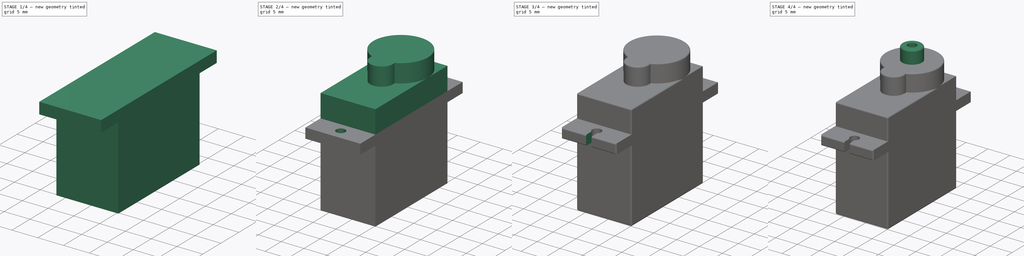
[diagram: build sequence overview — one tinted view per stage of 4, left to right]
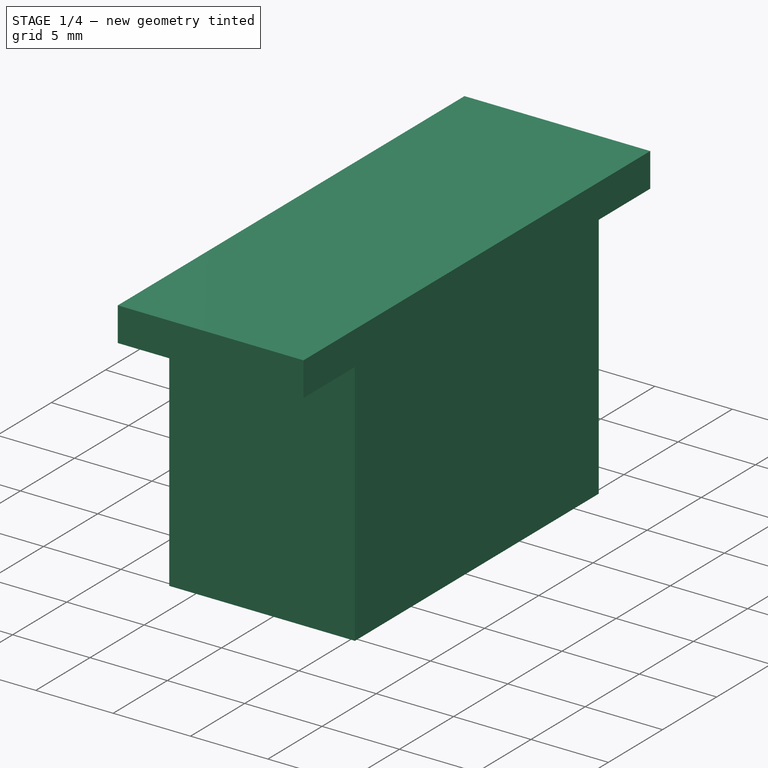
[diagram: stage 1 of 4 — iso view after this stage's code; geometry added in this stage tinted green]
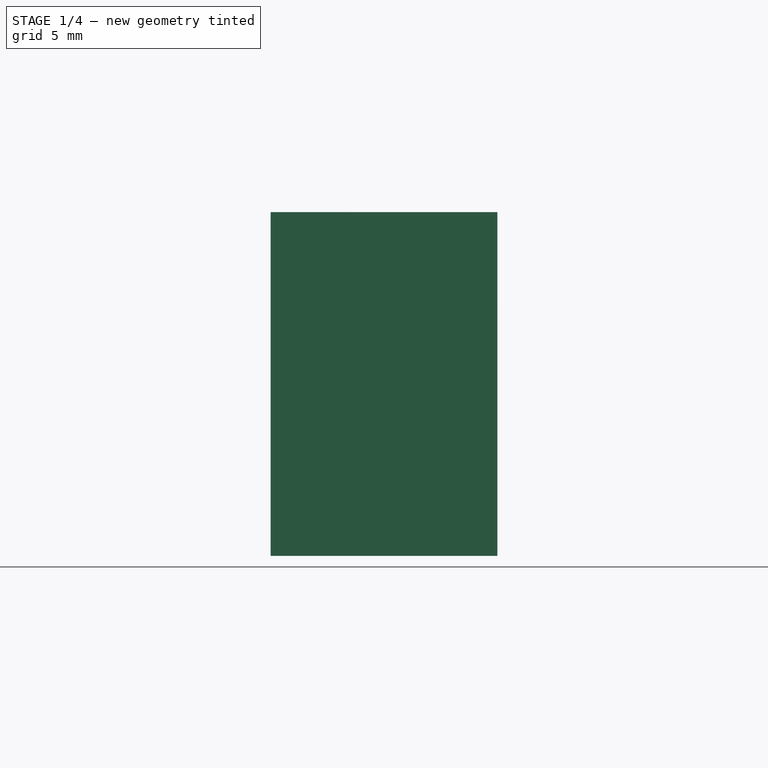
[diagram: stage 1 of 4 — front view after this stage's code; geometry added in this stage tinted green]
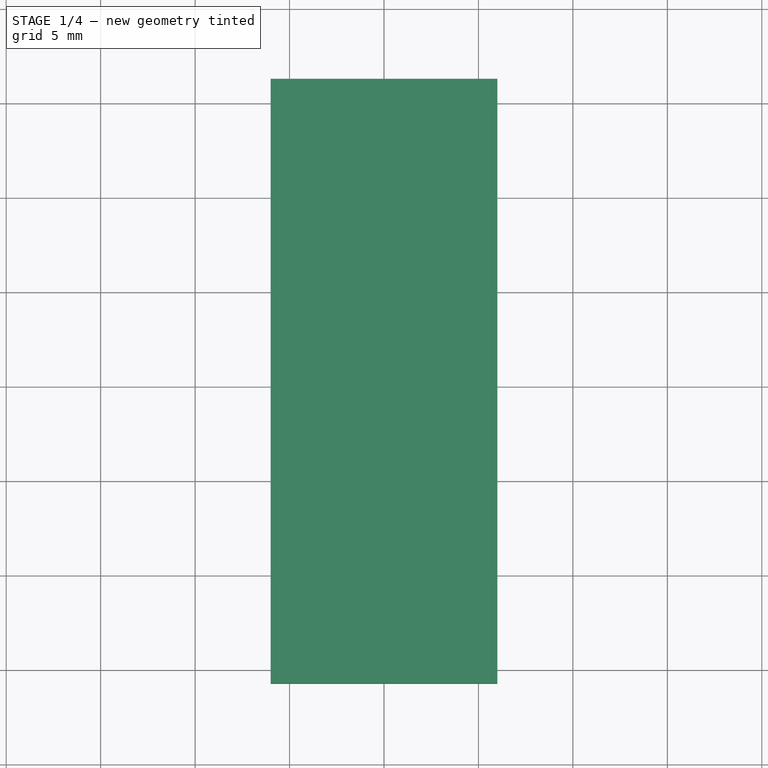
[diagram: stage 1 of 4 — top view after this stage's code; geometry added in this stage tinted green]
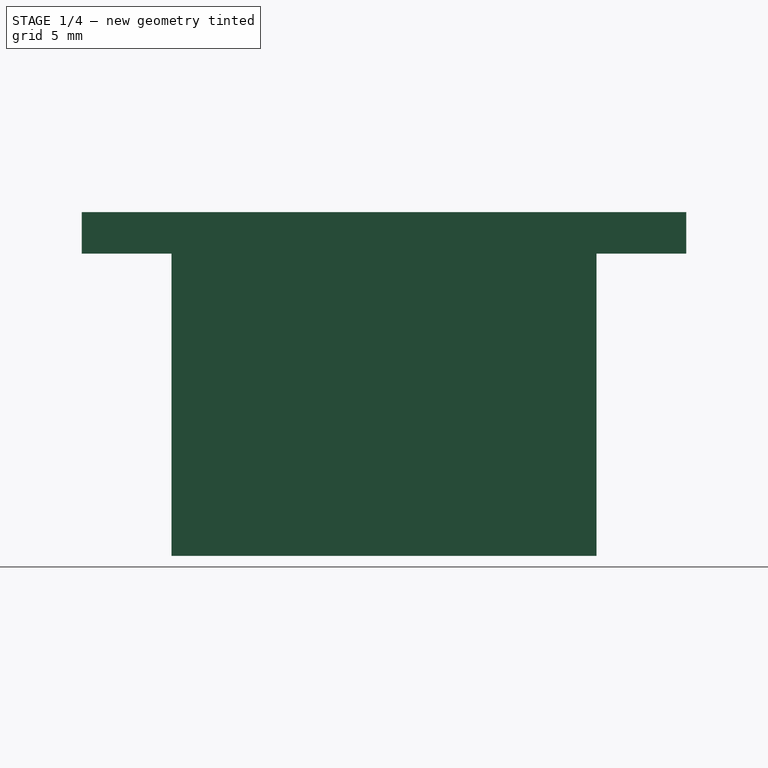
[diagram: stage 1 of 4 — right view after this stage's code; geometry added in this stage tinted green]
FCSTD DOCUMENT  (FreeCAD 1.0R39319 (Git))
Label: Servo-SG90
License: All rights reserved
LicenseURL: http://en.wikipedia.org/wiki/All_rights_reserved
objects: Sketcher::SketchObject×6, PartDesign::Pad×5, PartDesign::Fillet×2, PartDesign::Body×2, PartDesign::SubtractiveBox×2, PartDesign::Pocket×1, PartDesign::ShapeBinder×1
note: 45 computed .brp shape members not serialized (recipe doc carries the construction recipe); baked Part::Feature solids carry a one-line shape summary decoded from their .brp

FEATURE [Sketcher::SketchObject] Sketch
  ArcFitTolerance = 0
  AttachmentSupport = -> [XY_Plane]
  FullyConstrained = true
  MakeInternals = false
  MapMode = 5
  sketch-geometry (4):
    g0: LineSegment StartX=-6 StartY=11.25 StartZ=0 EndX=6 EndY=11.25 EndZ=0
    g1: LineSegment StartX=6 StartY=11.25 StartZ=0 EndX=6 EndY=-11.25 EndZ=0
    g2: LineSegment StartX=6 StartY=-11.25 StartZ=0 EndX=-6 EndY=-11.25 EndZ=0
    g3: LineSegment StartX=-6 StartY=-11.25 StartZ=0 EndX=-6 EndY=11.25 EndZ=0
  constraints (10):
    c: Coincident(g0,g1)
    c: Coincident(g1,g2)
    c: Coincident(g2,g3)
    c: Coincident(g3,g0)
    c: Horizontal(g2)
    c: Vertical(g1)
    c: Symmetric(g0,g0,g-2)
    c: Symmetric(g0,g2,g-1)
    c: DistanceX(g0,g0) = 12
    c: DistanceY(g1,g1) = 22.5
FEATURE [PartDesign::Pad] Pad
  AllowMultiFace = false
  Direction = (0,0,1)
  Length = 16
  Length2 = 100
  Profile = -> Sketch
  Reversed = true
  Suppressed = false
  Type = 0
FEATURE [Sketcher::SketchObject] Sketch001
  ArcFitTolerance = 0
  AttachmentSupport = -> [Pad]
  FullyConstrained = true
  MakeInternals = false
  MapMode = 5
  sketch-geometry (4):
    g0: LineSegment StartX=-6 StartY=16 StartZ=0 EndX=6 EndY=16 EndZ=0
    g1: LineSegment StartX=6 StartY=16 StartZ=0 EndX=6 EndY=-16 EndZ=0
    g2: LineSegment StartX=6 StartY=-16 StartZ=0 EndX=-6 EndY=-16 EndZ=0
    g3: LineSegment StartX=-6 StartY=-16 StartZ=0 EndX=-6 EndY=16 EndZ=0
  constraints (10):
    c: Coincident(g0,g1)
    c: Coincident(g1,g2)
    c: Coincident(g2,g3)
    c: Coincident(g3,g0)
    c: Horizontal(g2)
    c: Vertical(g1)
    c: Symmetric(g0,g0,g-2)
    c: Symmetric(g2,g0,g-1)
    c: DistanceX(g0,g0) = 12
    c: DistanceY(g1,g1) = 32
FEATURE [PartDesign::Pad] Pad001
  AllowMultiFace = false
  BaseFeature = -> Pad
  Direction = (0,0,1)
  Length = 2.2
  Length2 = 100
  Profile = -> Sketch001
  Suppressed = false
  Type = 0
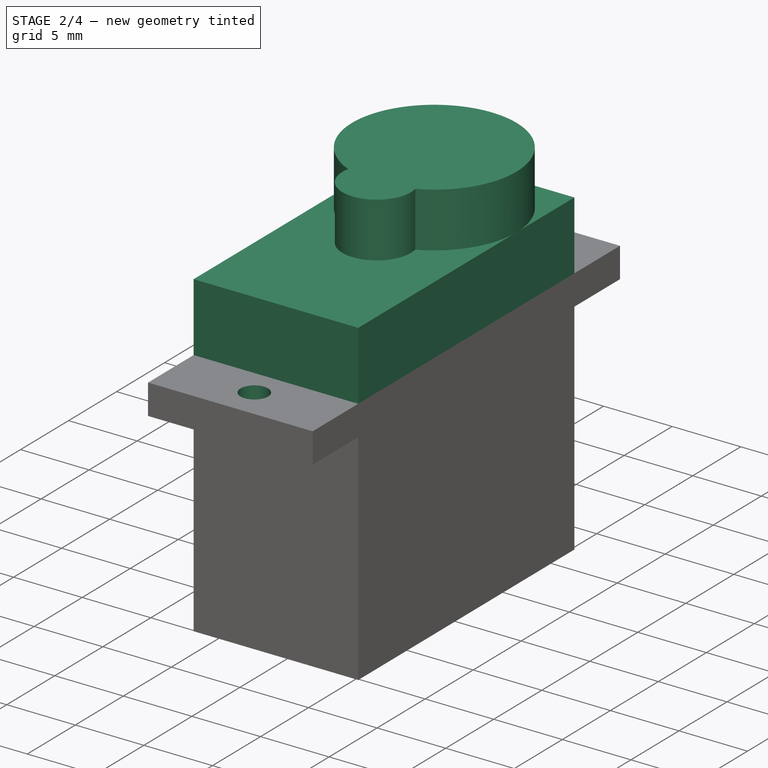
[diagram: stage 2 of 4 — iso view after this stage's code; geometry added in this stage tinted green]
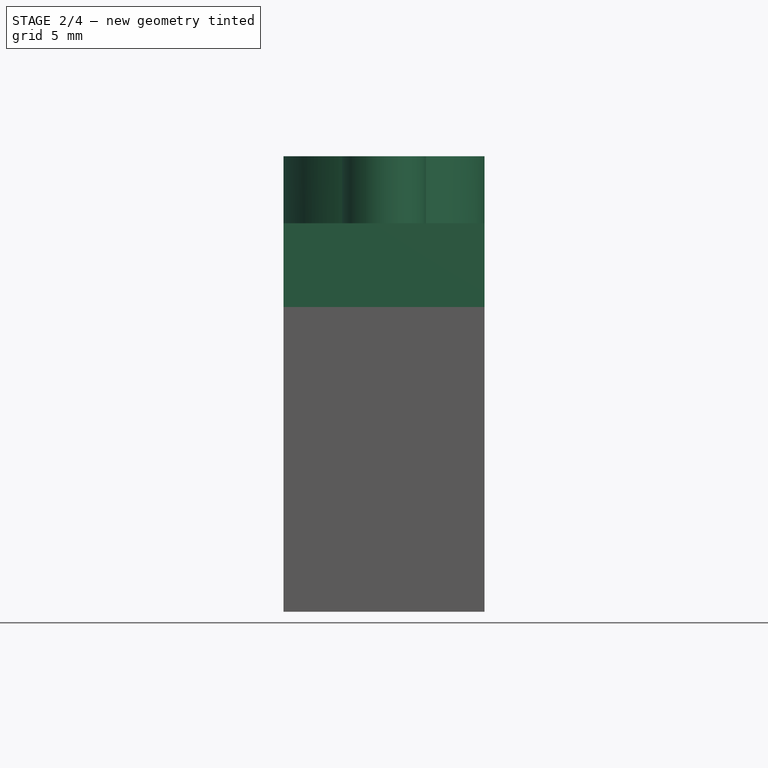
[diagram: stage 2 of 4 — front view after this stage's code; geometry added in this stage tinted green]
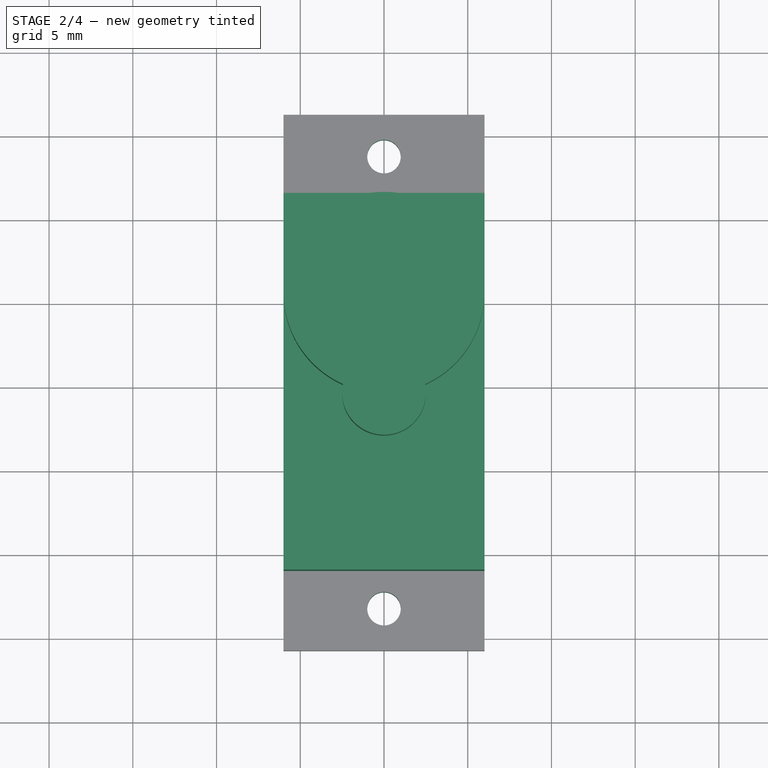
[diagram: stage 2 of 4 — top view after this stage's code; geometry added in this stage tinted green]
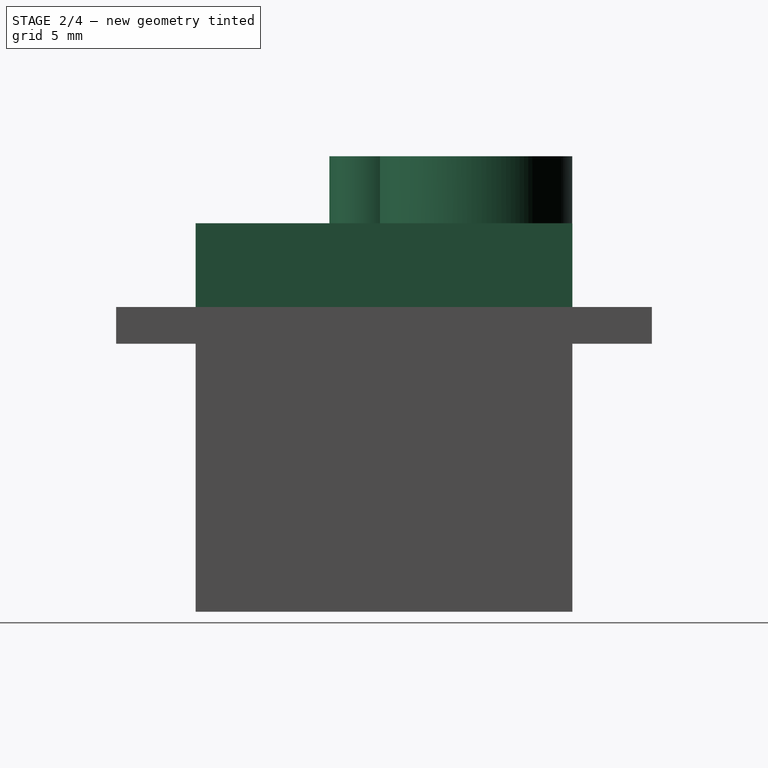
[diagram: stage 2 of 4 — right view after this stage's code; geometry added in this stage tinted green]
FEATURE [Sketcher::SketchObject] Sketch002
  ArcFitTolerance = 0
  AttachmentSupport = -> [Pad001]
  FullyConstrained = true
  MakeInternals = false
  MapMode = 5
  Placement = pos=(0,0,-16) rot=(1,0,0;3.14159rad)
  sketch-geometry (4):
    g0: LineSegment StartX=-6 StartY=11.25 StartZ=0 EndX=6 EndY=11.25 EndZ=0
    g1: LineSegment StartX=6 StartY=11.25 StartZ=0 EndX=6 EndY=-11.25 EndZ=0
    g2: LineSegment StartX=6 StartY=-11.25 StartZ=0 EndX=-6 EndY=-11.25 EndZ=0
    g3: LineSegment StartX=-6 StartY=-11.25 StartZ=0 EndX=-6 EndY=11.25 EndZ=0
  constraints (10):
    c: Coincident(g0,g1)
    c: Coincident(g1,g2)
    c: Coincident(g2,g3)
    c: Coincident(g3,g0)
    c: Horizontal(g2)
    c: Vertical(g1)
    c: Symmetric(g0,g0,g-2)
    c: Symmetric(g0,g2,g-1)
    c: DistanceX(g0,g0) = 12
    c: DistanceY(g1,g1) = 22.5
FEATURE [PartDesign::Pad] Pad002
  AllowMultiFace = false
  BaseFeature = -> Pad001
  Direction = (0,0,-1)
  Length = 5
  Length2 = 100
  Profile = -> Sketch002
  Suppressed = false
  Type = 0
FEATURE [Sketcher::SketchObject] Sketch003
  ArcFitTolerance = 0
  FullyConstrained = true
  MakeInternals = false
  MapMode = 5
  Placement = pos=(0,0,2.2) rot=(0,0,1;0rad)
  sketch-geometry (2):
    g0: Circle CenterX=0 CenterY=13.5 CenterZ=0 NormalX=0 NormalY=0 NormalZ=1 AngleXU=0 Radius=1
    g1: Circle CenterX=0 CenterY=-13.5 CenterZ=0 NormalX=0 NormalY=0 NormalZ=1 AngleXU=0 Radius=1
  constraints (5):
    c: PointOnObject(g0,g-2)
    c: Equal(g1,g0)
    c: Symmetric(g0,g1,g-1)
    c: DistanceY(g1,g0) = 27
    c: Diameter(g0) = 2
FEATURE [PartDesign::Pocket] Pocket
  AllowMultiFace = false
  BaseFeature = -> Pad002
  Direction = (0,0,-1)
  Length = 3
  Length2 = 100
  Profile = -> Sketch003
  Suppressed = false
  Type = 0
FEATURE [Sketcher::SketchObject] Sketch004
  ArcFitTolerance = 0
  AttachmentSupport = -> [Pocket]
  FullyConstrained = true
  MakeInternals = false
  MapMode = 5
  Placement = pos=(0,0,7.2) rot=(0,0,1;0rad)
  sketch-geometry (2):
    g0: ArcOfCircle CenterX=0 CenterY=5.24 CenterZ=0 NormalX=0 NormalY=0 NormalZ=1 AngleXU=0 Radius=6 StartAngle=5.13213 EndAngle=10.5758
    g1: ArcOfCircle CenterX=0 CenterY=-0.76 CenterZ=0 NormalX=0 NormalY=0 NormalZ=1 AngleXU=0 Radius=2.5 StartAngle=2.93172 EndAngle=6.49306
  constraints (8):
    c: PointOnObject(g0,g-2)
    c: PointOnObject(g1,g-2)
    c: DistanceY(g1,g0) = 6
    c: Coincident(g0,g1)
    c: Coincident(g0,g1)
    c: Diameter(g0) = 12
    c: Diameter(g1) = 5
    c: DistanceY(g-1,g0) = 5.24
FEATURE [PartDesign::Pad] Pad003
  AllowMultiFace = false
  BaseFeature = -> Pocket
  Direction = (1,1,1)
  Length = 4
  Length2 = 100
  Profile = -> Sketch004
  Suppressed = false
  Type = 0
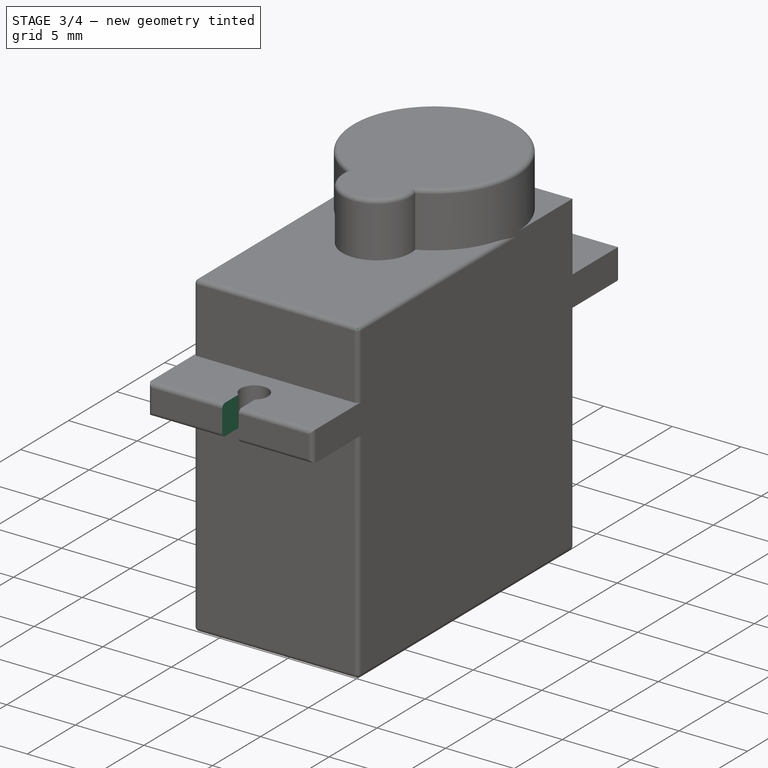
[diagram: stage 3 of 4 — iso view after this stage's code; geometry added in this stage tinted green]
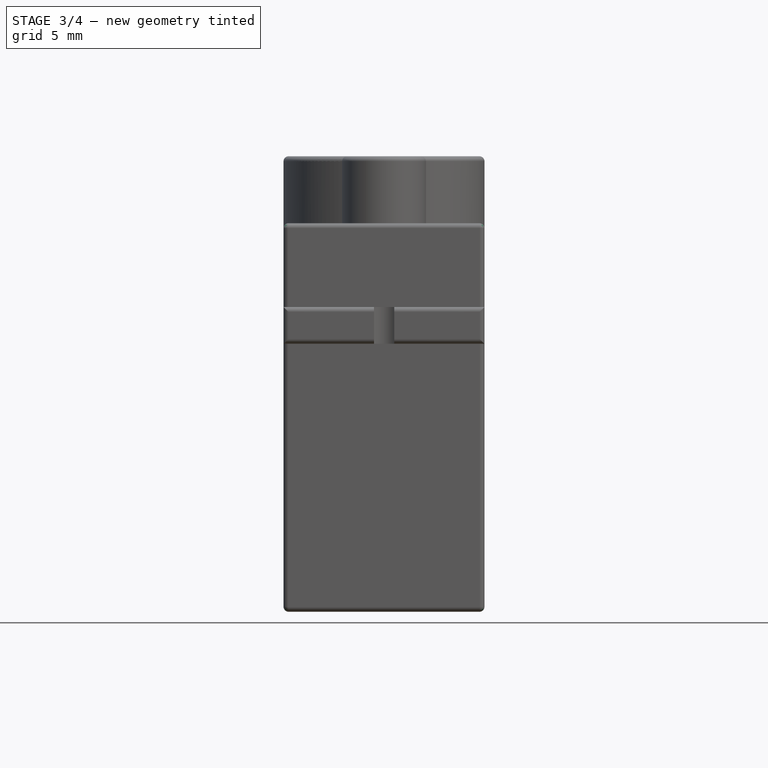
[diagram: stage 3 of 4 — front view after this stage's code; geometry added in this stage tinted green]
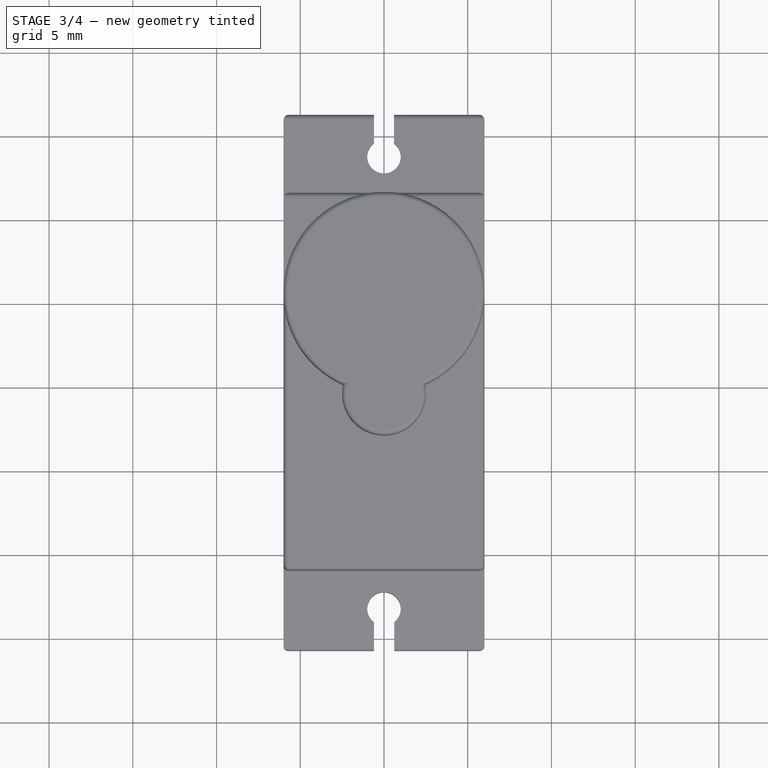
[diagram: stage 3 of 4 — top view after this stage's code; geometry added in this stage tinted green]
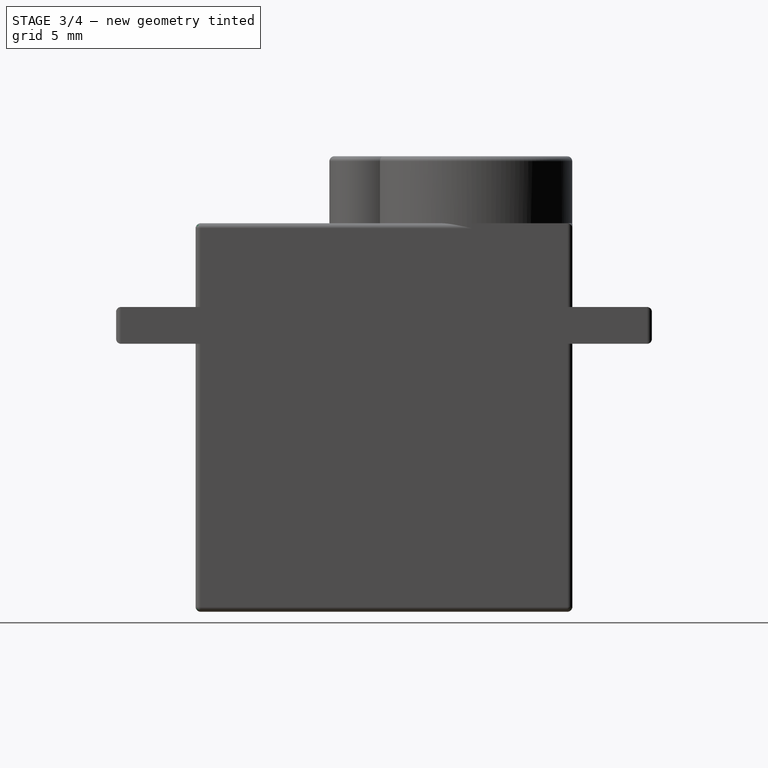
[diagram: stage 3 of 4 — right view after this stage's code; geometry added in this stage tinted green]
FEATURE [PartDesign::Body] Body001
  AllowCompound = false
  Group = -> [CopyPad003,Sketch005,Pad004,Fillet]
  Origin = -> Origin001
  Tip = -> Fillet
FEATURE [PartDesign::Fillet] Fillet001
  Base = -> Pad003 [Edge55,Edge56,Edge24,Edge23,Edge4,Edge3,Edge48,Edge42,Edge34,Edge45,Edge32,Edge40,Edge39,Edge33,Edge37,Edge36,Edge28,Edge27,Edge43,Edge46,Edge38,Edge12,Edge2,Edge1,Edge5,Edge29]
  BaseFeature = -> Pad003
  Radius = 0.3
  Refine = true
  SupportTransform = false
  Suppressed = false
  UseAllEdges = false
FEATURE [PartDesign::SubtractiveBox] Box
  AttacherType = Attacher::AttachEngine3D
  AttachmentOffset = pos=(-0.6,14,0) rot=(0,0,1;0rad)
  AttachmentSupport = -> [XY_Plane]
  BaseFeature = -> Fillet001
  Height = 3
  Length = 1.2
  MapMode = 5
  Placement = pos=(-0.6,14,0) rot=(0,0,1;0rad)
  Suppressed = false
  Width = 3
FEATURE [PartDesign::SubtractiveBox] Box001
  AttacherType = Attacher::AttachEngine3D
  AttachmentOffset = pos=(-0.6,-17,0) rot=(0,0,1;0rad)
  AttachmentSupport = -> [XY_Plane]
  BaseFeature = -> Box
  Height = 3
  Length = 1.21
  MapMode = 5
  Placement = pos=(-0.6,-17,0) rot=(0,0,1;0rad)
  Suppressed = false
  Width = 3
FEATURE [PartDesign::Body] Body
  AllowCompound = false
  Group = -> [Sketch,Pad,Sketch001,Pad001,Sketch002,Pad002,Sketch003,Pocket,Sketch004,Pad003,Fillet001,Box,Box001]
  Origin = -> Origin
  Tip = -> Box001
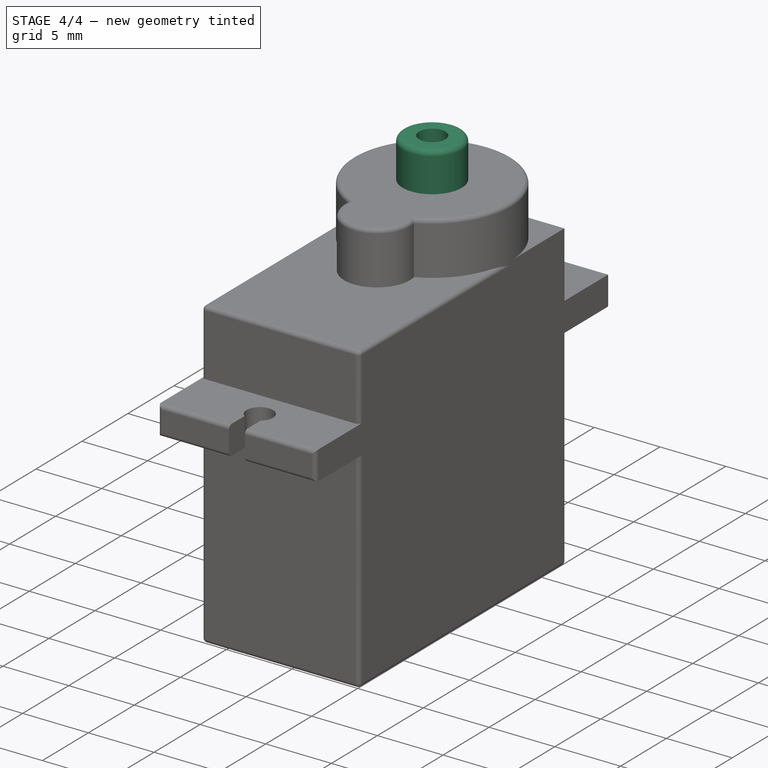
[diagram: stage 4 of 4 — iso view after this stage's code; geometry added in this stage tinted green]
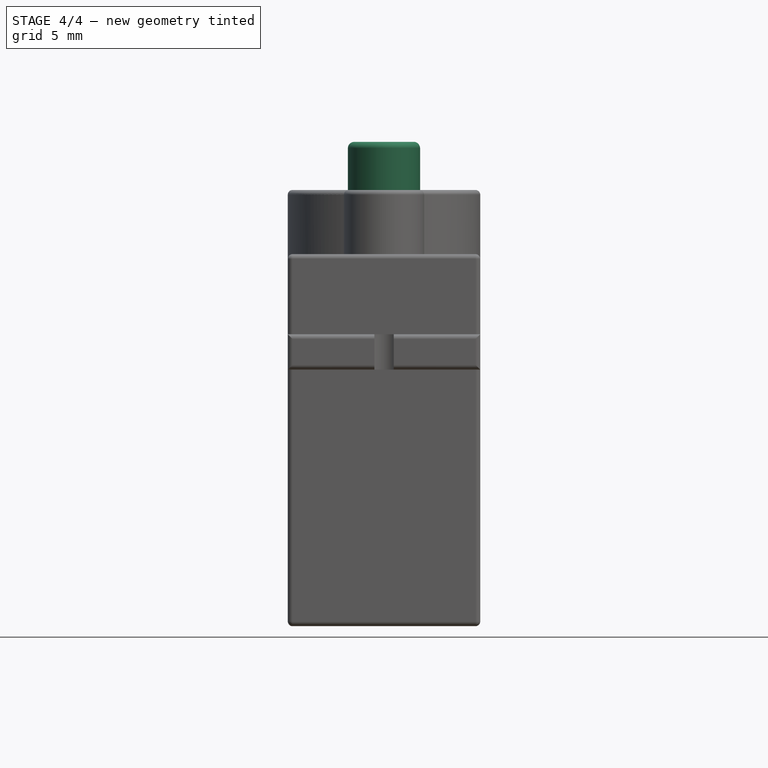
[diagram: stage 4 of 4 — front view after this stage's code; geometry added in this stage tinted green]
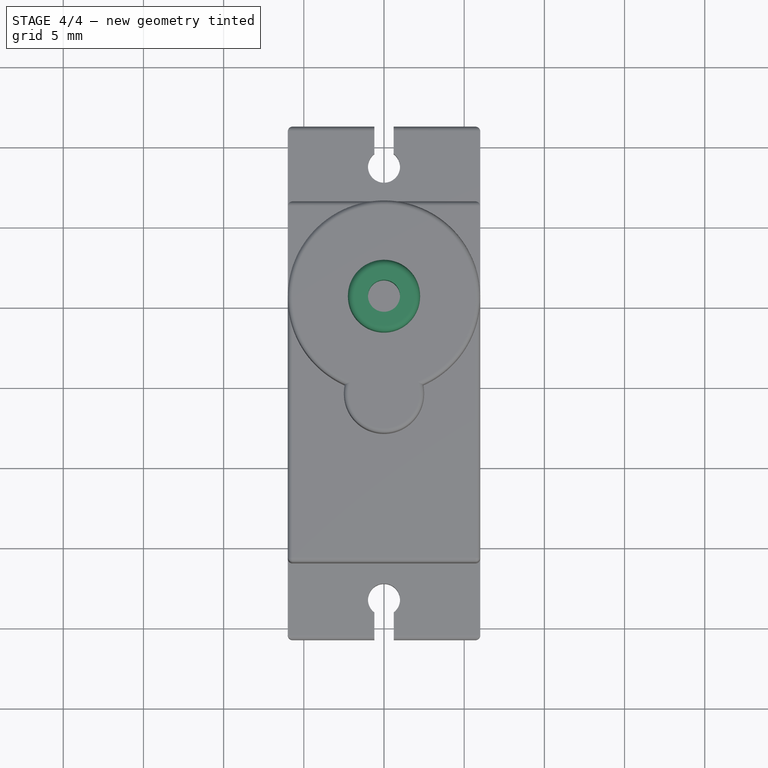
[diagram: stage 4 of 4 — top view after this stage's code; geometry added in this stage tinted green]
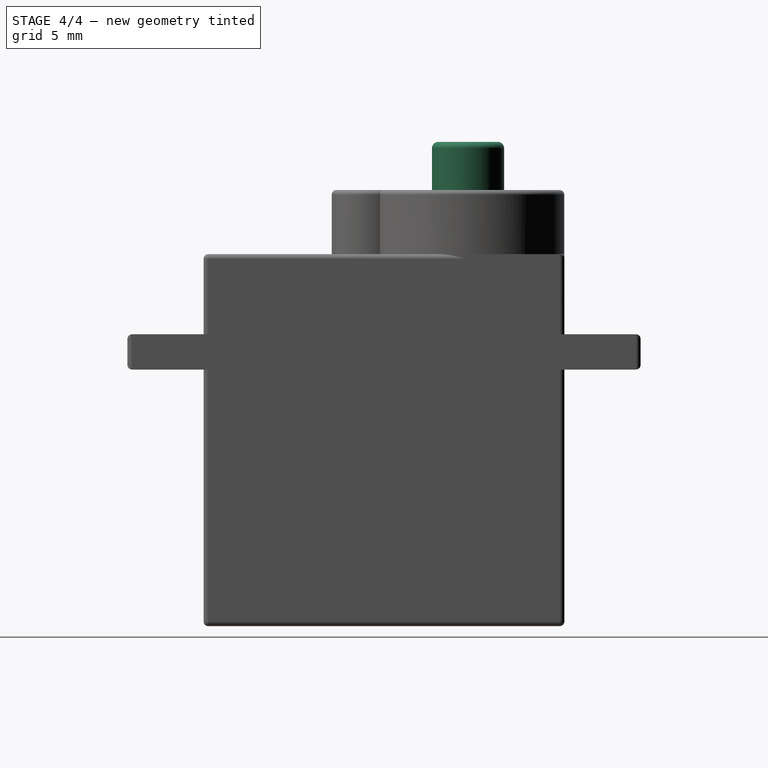
[diagram: stage 4 of 4 — right view after this stage's code; geometry added in this stage tinted green]
FEATURE [PartDesign::ShapeBinder] CopyPad003
  Placement = pos=(0,0,4) rot=(0,0,1;0rad)
  TraceSupport = false
FEATURE [Sketcher::SketchObject] Sketch005
  ArcFitTolerance = 0
  AttachmentSupport = -> [CopyPad003]
  FullyConstrained = true
  MakeInternals = false
  MapMode = 5
  Placement = pos=(0,0,11.2) rot=(0,0,1;0rad)
  sketch-geometry (2):
    g0: Circle CenterX=0 CenterY=5.24 CenterZ=0 NormalX=0 NormalY=0 NormalZ=1 AngleXU=0 Radius=2.25
    g1: Circle CenterX=0 CenterY=5.24 CenterZ=0 NormalX=0 NormalY=0 NormalZ=1 AngleXU=0 Radius=1
  constraints (5):
    c: PointOnObject(g0,g-2)
    c: Diameter(g0) = 4.5
    c: DistanceY(g-1,g0) = 5.24
    c: Coincident(g1,g0)
    c: Diameter(g1) = 2
FEATURE [PartDesign::Pad] Pad004
  AllowMultiFace = false
  Direction = (0,0,1)
  Length = 3
  Length2 = 100
  Placement = pos=(0,0,4) rot=(0,0,1;0rad)
  Profile = -> Sketch005
  Suppressed = false
  Type = 0
FEATURE [PartDesign::Fillet] Fillet
  Base = -> Pad004 [Edge3]
  BaseFeature = -> Pad004
  Placement = pos=(0,0,4) rot=(0,0,1;0rad)
  Radius = 0.4
  Refine = true
  SupportTransform = false
  Suppressed = false
  UseAllEdges = false
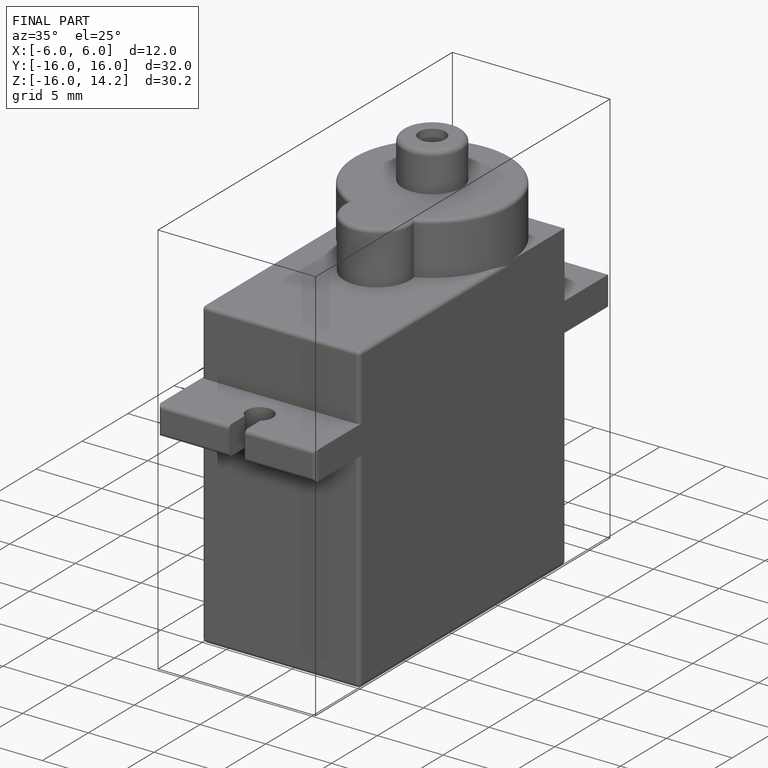
[diagram: finished part — iso view with bounding-box wireframe]
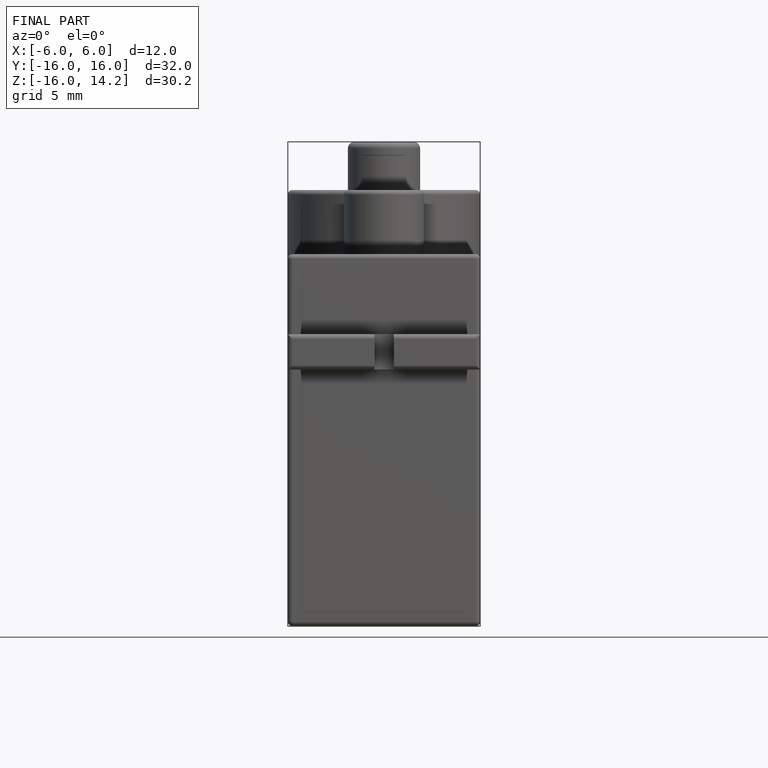
[diagram: finished part — front view with bounding-box wireframe]
